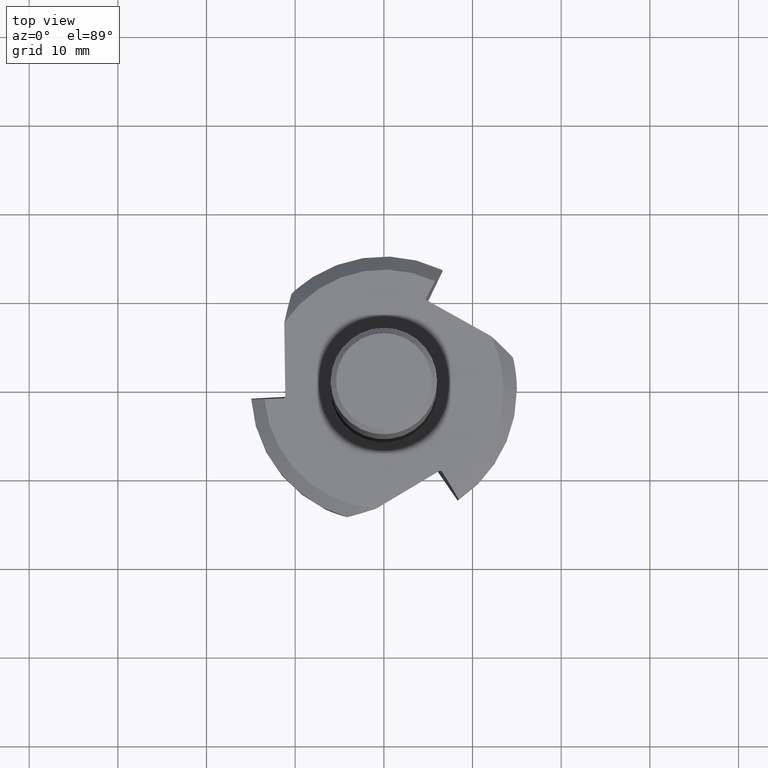
[diagram: clean part render]
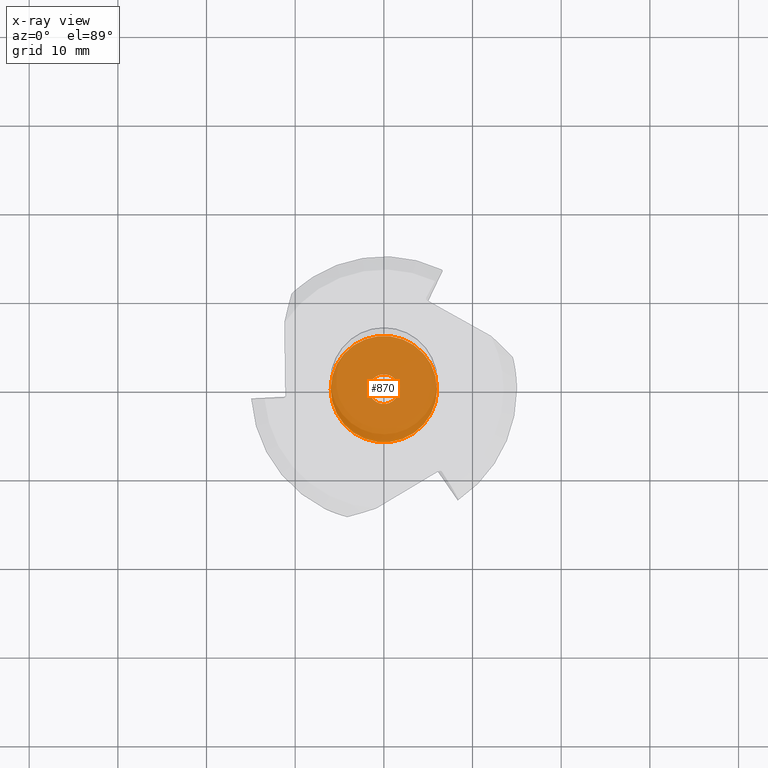
[diagram: x-ray — body ghosted, one internal face saturated and labeled with its STEP entity id]
A machine part, top view, then the same camera in x-ray: the body is ghosted and one INTERNAL B-rep face — a face not visible from any outside direction — is saturated and labeled: STEP entity #870.
In plain terms, the highlighted planar face has unit normal (0, 0, -1).
Its self-contained STEP definition (entity closure, byte-faithful):
#450=VERTEX_POINT('',#1213);
#470=EDGE_CURVE('',#912,#782,#1237,.T.);
#476=EDGE_CURVE('',#450,#1036,#1244,.T.);
#480=EDGE_CURVE('',#782,#912,#1248,.T.);
#782=VERTEX_POINT('',#1572);
#870=ADVANCED_FACE('',(#1669,#1670),#1671,.T.);
#912=VERTEX_POINT('',#1718);
#978=EDGE_CURVE('',#1036,#450,#1790,.T.);
#1036=VERTEX_POINT('',#1853);
#1213=CARTESIAN_POINT('',(1.68,2.05733867442159E-016,-52.94));
#1237=CIRCLE('',#2088,6.0);
#1244=CIRCLE('',#2097,1.68);
#1248=CIRCLE('',#2102,6.0);
#1572=CARTESIAN_POINT('',(-6.0,0.0,-52.94));
#1669=FACE_BOUND('',#3048,.T.);
#1670=FACE_OUTER_BOUND('',#3049,.T.);
#1671=PLANE('',#3050);
#1718=CARTESIAN_POINT('',(6.0,7.34763812293426E-016,-52.94));
#1790=CIRCLE('',#3352,1.68);
#1853=CARTESIAN_POINT('',(-1.68,0.0,-52.94));
#2088=AXIS2_PLACEMENT_3D('',#3938,#3939,#3940);
#2097=AXIS2_PLACEMENT_3D('',#3952,#3953,#3954);
#2102=AXIS2_PLACEMENT_3D('',#3955,#3956,#3957);
#3048=EDGE_LOOP('',(#4390,#4391));
#3049=EDGE_LOOP('',(#4392,#4393));
#3050=AXIS2_PLACEMENT_3D('',#4394,#4395,#4396);
#3352=AXIS2_PLACEMENT_3D('',#4537,#4538,#4539);
#3938=CARTESIAN_POINT('',(0.0,0.0,-52.94));
#3939=DIRECTION('',(0.0,0.0,-1.0));
#3940=DIRECTION('',(-1.0,0.0,0.0));
#3952=CARTESIAN_POINT('',(0.0,0.0,-52.94));
#3953=DIRECTION('',(0.0,0.0,-1.0));
#3954=DIRECTION('',(-1.0,0.0,0.0));
#3955=CARTESIAN_POINT('',(0.0,0.0,-52.94));
#3956=DIRECTION('',(0.0,0.0,-1.0));
#3957=DIRECTION('',(-1.0,0.0,0.0));
#4390=ORIENTED_EDGE('',*,*,#978,.F.);
#4391=ORIENTED_EDGE('',*,*,#476,.F.);
#4392=ORIENTED_EDGE('',*,*,#480,.T.);
#4393=ORIENTED_EDGE('',*,*,#470,.T.);
#4394=CARTESIAN_POINT('',(-3.84,0.0,-52.94));
#4395=DIRECTION('',(0.0,0.0,-1.0));
#4396=DIRECTION('',(-1.0,0.0,0.0));
#4537=CARTESIAN_POINT('',(0.0,0.0,-52.94));
#4538=DIRECTION('',(0.0,0.0,-1.0));
#4539=DIRECTION('',(-1.0,0.0,0.0));